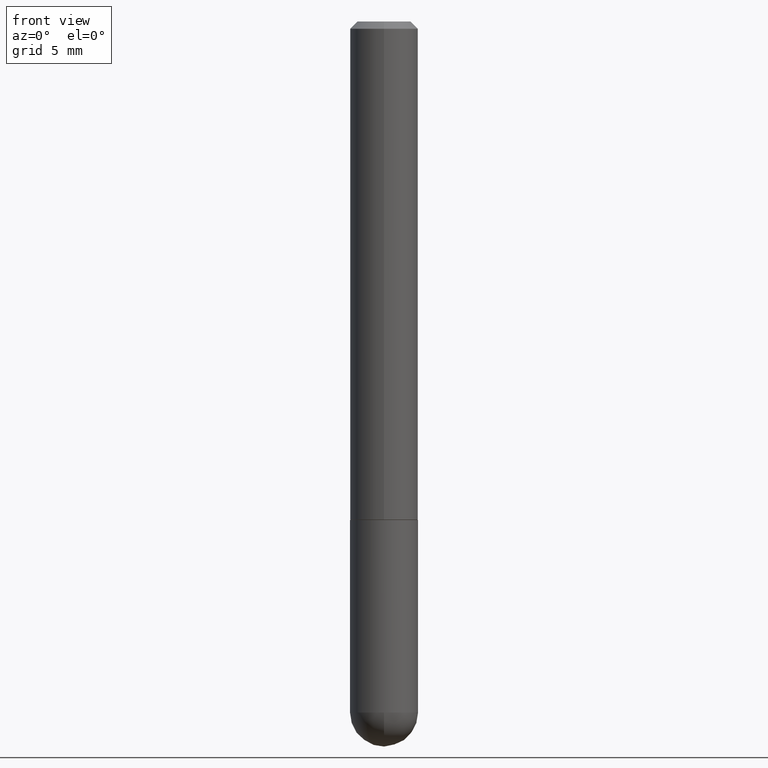
[diagram: clean part render]
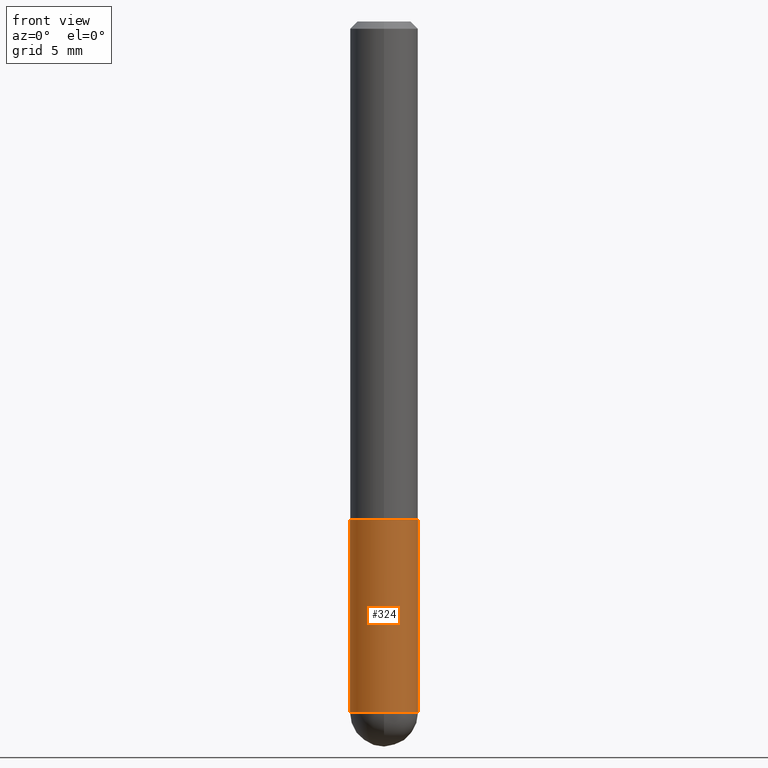
[diagram: same view with one face highlighted and labeled with its STEP entity id]
A machine part, front view. The second image highlights one B-rep face of the part: STEP entity #324.
In plain terms, the highlighted cylindrical surface (edge-blend (fillet) strip) has radius 2.3813 mm, axis along (-0, 0, 1).
Its self-contained STEP definition (entity closure, byte-faithful):
#5 = DIRECTION ( 'NONE',  ( -2.445468806185136597E-29, 3.491481338843145583E-15, 1.000000000000000000 ) ) ;
#7 = DIRECTION ( 'NONE',  ( 1.000000000000000000, -6.982962677686265922E-15, 4.876176775795935793E-29 ) ) ;
#35 = CYLINDRICAL_SURFACE ( 'NONE', #309, 0.09375000000000001388 ) ;
#49 = CARTESIAN_POINT ( 'NONE',  ( -6.661338147750496494E-16, -0.09375000000000702216, -1.906249999999999556 ) ) ;
#61 = VERTEX_POINT ( 'NONE', #49 ) ;
#65 = VERTEX_POINT ( 'NONE', #251 ) ;
#91 = DIRECTION ( 'NONE',  ( 1.000000000000000000, -6.982962677686261189E-15, 0.000000000000000000 ) ) ;
#93 = CARTESIAN_POINT ( 'NONE',  ( 4.661674911790416638E-29, -6.655636302169745441E-15, -1.906250000000000000 ) ) ;
#99 = ORIENTED_EDGE ( 'NONE', *, *, #331, .F. ) ;
#100 = FACE_OUTER_BOUND ( 'NONE', #160, .T. ) ;
#112 = CIRCLE ( 'NONE', #210, 0.09375000000000001388 ) ;
#158 = DIRECTION ( 'NONE',  ( -2.445468806185136597E-29, 3.491481338843145583E-15, 1.000000000000000000 ) ) ;
#160 = EDGE_LOOP ( 'NONE', ( #99, #307, #206, #359, #194 ) ) ;
#166 = EDGE_CURVE ( 'NONE', #305, #65, #375, .T. ) ;
#176 = VERTEX_POINT ( 'NONE', #311 ) ;
#177 = VECTOR ( 'NONE', #308, 39.37007874015748143 ) ;
#194 = ORIENTED_EDGE ( 'NONE', *, *, #379, .F. ) ;
#206 = ORIENTED_EDGE ( 'NONE', *, *, #230, .T. ) ;
#210 = AXIS2_PLACEMENT_3D ( 'NONE', #291, #225, #288 ) ;
#225 = DIRECTION ( 'NONE',  ( -2.445468806185136597E-29, 3.491481338843145583E-15, 1.000000000000000000 ) ) ;
#230 = EDGE_CURVE ( 'NONE', #61, #305, #345, .T. ) ;
#232 = CARTESIAN_POINT ( 'NONE',  ( 0.09375000000000001388, -6.382864322572621901E-15, -1.906250000000000000 ) ) ;
#251 = CARTESIAN_POINT ( 'NONE',  ( 0.09375000000000001388, -5.455439591942412434E-15, -1.375000000000000000 ) ) ;
#253 = CARTESIAN_POINT ( 'NONE',  ( 4.661674911790416638E-29, -6.655636302169745441E-15, -1.906250000000000000 ) ) ;
#288 = DIRECTION ( 'NONE',  ( 1.000000000000000000, -6.982962677686261189E-15, 0.000000000000000000 ) ) ;
#289 = CIRCLE ( 'NONE', #304, 0.09375000000000001388 ) ;
#291 = CARTESIAN_POINT ( 'NONE',  ( 3.362519608504562260E-29, -4.800786840909324930E-15, -1.375000000000000000 ) ) ;
#294 = VERTEX_POINT ( 'NONE', #357 ) ;
#304 = AXIS2_PLACEMENT_3D ( 'NONE', #93, #158, #387 ) ;
#305 = VERTEX_POINT ( 'NONE', #232 ) ;
#307 = ORIENTED_EDGE ( 'NONE', *, *, #342, .T. ) ;
#308 = DIRECTION ( 'NONE',  ( -2.445468806185136877E-29, 3.491481338843145188E-15, 1.000000000000000000 ) ) ;
#309 = AXIS2_PLACEMENT_3D ( 'NONE', #386, #5, #7 ) ;
#311 = CARTESIAN_POINT ( 'NONE',  ( -0.09375000000000001388, -5.062077756764441261E-15, -1.375000000000000000 ) ) ;
#324 = ADVANCED_FACE ( 'NONE', ( #100 ), #35, .T. ) ;
#331 = EDGE_CURVE ( 'NONE', #294, #176, #351, .T. ) ;
#342 = EDGE_CURVE ( 'NONE', #294, #61, #289, .T. ) ;
#345 = CIRCLE ( 'NONE', #401, 0.09375000000000001388 ) ;
#350 = CARTESIAN_POINT ( 'NONE',  ( -0.09375000000000001388, 6.661338147750940229E-16, -4.611501647113973995E-30 ) ) ;
#351 = LINE ( 'NONE', #350, #382 ) ;
#357 = CARTESIAN_POINT ( 'NONE',  ( -0.09375000000000001388, -5.062077756764441261E-15, -1.906250000000000000 ) ) ;
#359 = ORIENTED_EDGE ( 'NONE', *, *, #166, .T. ) ;
#375 = LINE ( 'NONE', #404, #177 ) ;
#378 = DIRECTION ( 'NONE',  ( -2.445468806185136597E-29, 3.491481338843145583E-15, 1.000000000000000000 ) ) ;
#379 = EDGE_CURVE ( 'NONE', #176, #65, #112, .T. ) ;
#382 = VECTOR ( 'NONE', #412, 39.37007874015748143 ) ;
#386 = CARTESIAN_POINT ( 'NONE',  ( 0.000000000000000000, 0.000000000000000000, 0.000000000000000000 ) ) ;
#387 = DIRECTION ( 'NONE',  ( 1.000000000000000000, -6.982962677686261189E-15, 0.000000000000000000 ) ) ;
#401 = AXIS2_PLACEMENT_3D ( 'NONE', #253, #378, #91 ) ;
#404 = CARTESIAN_POINT ( 'NONE',  ( 0.09375000000000001388, -6.546527510330875041E-16, 4.571415727308690506E-30 ) ) ;
#412 = DIRECTION ( 'NONE',  ( -2.445468806185136877E-29, 3.491481338843145188E-15, 1.000000000000000000 ) ) ;